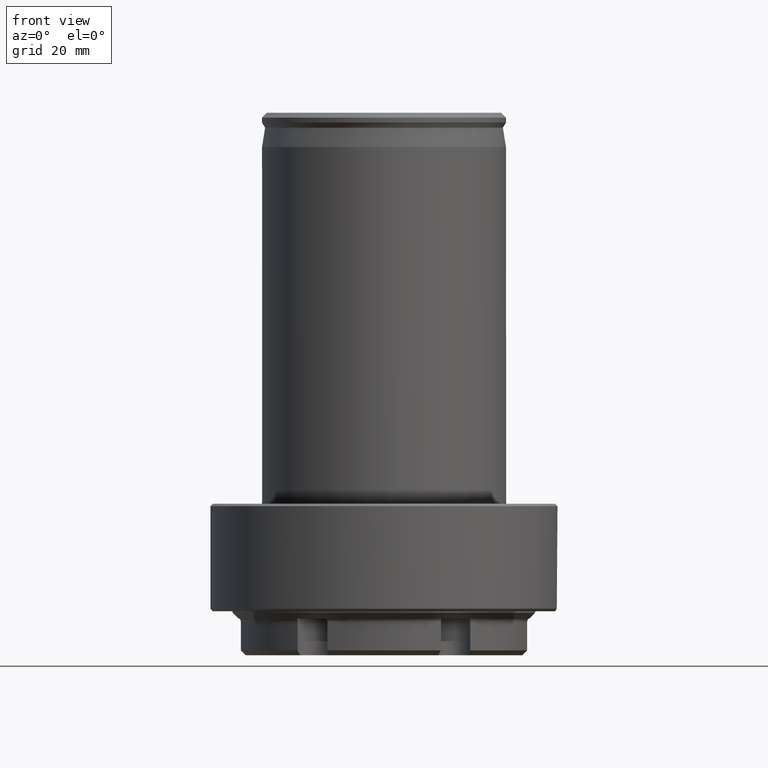
[diagram: clean part render]
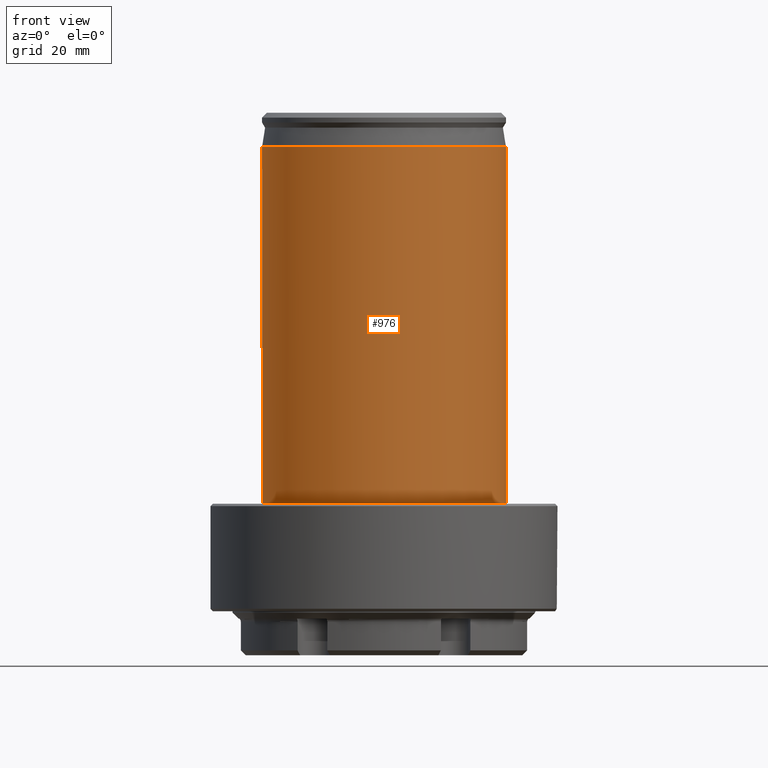
[diagram: same view with one face highlighted and labeled with its STEP entity id]
A machine part, front view. The second image highlights one B-rep face of the part: STEP entity #976.
In plain terms, the highlighted cylindrical surface (bore or boss wall) has radius 25 mm, axis along (0, 0, -1).
Its self-contained STEP definition (entity closure, byte-faithful):
#26=ELLIPSE('',#1059,35.3553390593274,25.);
#28=CYLINDRICAL_SURFACE('',#1060,25.);
#106=LINE('',#1524,#148);
#107=LINE('',#1525,#149);
#148=VECTOR('',#1202,1000.);
#149=VECTOR('',#1203,1000.);
#218=ORIENTED_EDGE('',*,*,#496,.T.);
#219=ORIENTED_EDGE('',*,*,#495,.T.);
#220=ORIENTED_EDGE('',*,*,#494,.T.);
#221=ORIENTED_EDGE('',*,*,#489,.T.);
#222=ORIENTED_EDGE('',*,*,#493,.T.);
#489=EDGE_CURVE('',#632,#633,#726,.T.);
#493=EDGE_CURVE('',#633,#634,#106,.T.);
#494=EDGE_CURVE('',#635,#632,#107,.F.);
#495=EDGE_CURVE('',#634,#635,#26,.F.);
#496=EDGE_CURVE('',#636,#636,#727,.T.);
#632=VERTEX_POINT('',#1510);
#633=VERTEX_POINT('',#1511);
#634=VERTEX_POINT('',#1522);
#635=VERTEX_POINT('',#1523);
#636=VERTEX_POINT('',#1530);
#726=CIRCLE('',#1056,25.);
#727=CIRCLE('',#1061,25.);
#790=EDGE_LOOP('',(#218));
#791=EDGE_LOOP('',(#219,#220,#221,#222));
#870=FACE_BOUND('',#790,.T.);
#871=FACE_BOUND('',#791,.T.);
#976=ADVANCED_FACE('',(#870,#871),#28,.T.);
#1056=AXIS2_PLACEMENT_3D('',#1509,#1197,#1198);
#1059=AXIS2_PLACEMENT_3D('',#1527,#1206,#1207);
#1060=AXIS2_PLACEMENT_3D('',#1528,#1208,#1209);
#1061=AXIS2_PLACEMENT_3D('',#1529,#1210,#1211);
#1197=DIRECTION('',(0.,1.66533453693774E-16,-1.));
#1198=DIRECTION('',(-1.,0.,0.));
#1202=DIRECTION('',(0.,1.66533453693774E-16,-1.));
#1203=DIRECTION('',(0.,1.66533453693774E-16,-1.));
#1206=DIRECTION('',(-7.85046229341888E-17,0.707106781186548,0.707106781186547));
#1207=DIRECTION('',(-7.85046229341887E-17,0.707106781186547,-0.707106781186548));
#1208=DIRECTION('',(0.,1.66533453693774E-16,-1.));
#1209=DIRECTION('',(-1.,0.,0.));
#1210=DIRECTION('',(0.,-1.66533453693774E-16,1.));
#1211=DIRECTION('',(1.,0.,0.));
#1509=CARTESIAN_POINT('',(-6.93889390390723E-15,-2.62290189567693E-14,73.));
#1510=CARTESIAN_POINT('',(10.2547549946354,22.8,73.));
#1511=CARTESIAN_POINT('',(-10.2547549946354,22.8,73.));
#1522=CARTESIAN_POINT('',(-10.2547549946354,22.8,4.));
#1523=CARTESIAN_POINT('',(10.2547549946353,22.8,4.));
#1524=CARTESIAN_POINT('',(-10.2547549946354,22.8,46.));
#1525=CARTESIAN_POINT('',(10.2547549946353,22.8,46.));
#1527=CARTESIAN_POINT('',(-6.93889390390723E-15,-1.8535173396117E-14,26.8));
#1528=CARTESIAN_POINT('',(-6.93889390390723E-15,-2.17326157070374E-14,46.));
#1529=CARTESIAN_POINT('',(-6.93889390390723E-15,-1.40720768371239E-14,3.46944695195361E-15));
#1530=CARTESIAN_POINT('',(25.,-1.40720768371239E-14,3.46944695195361E-15));